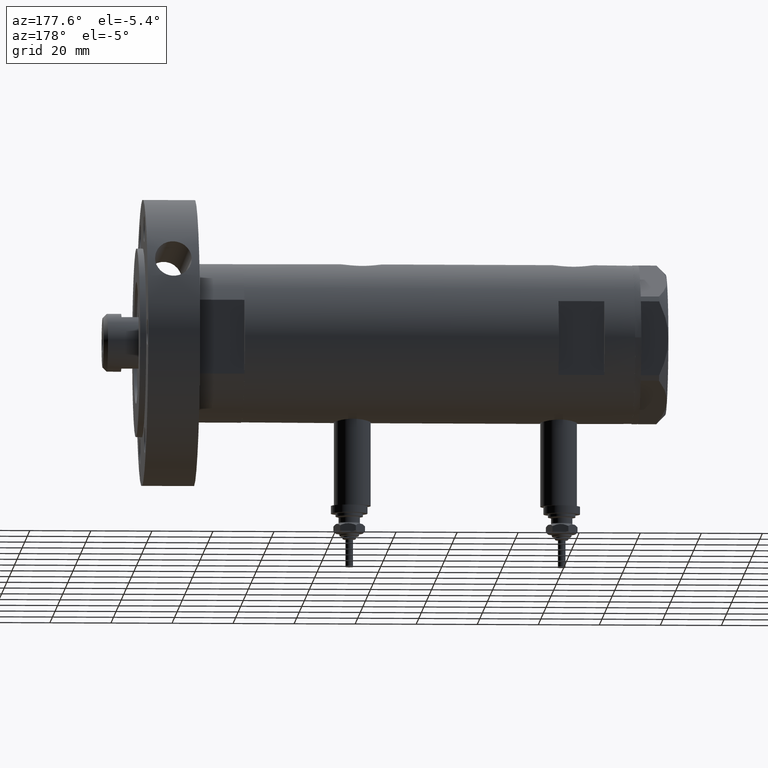
[diagram: clean part render]
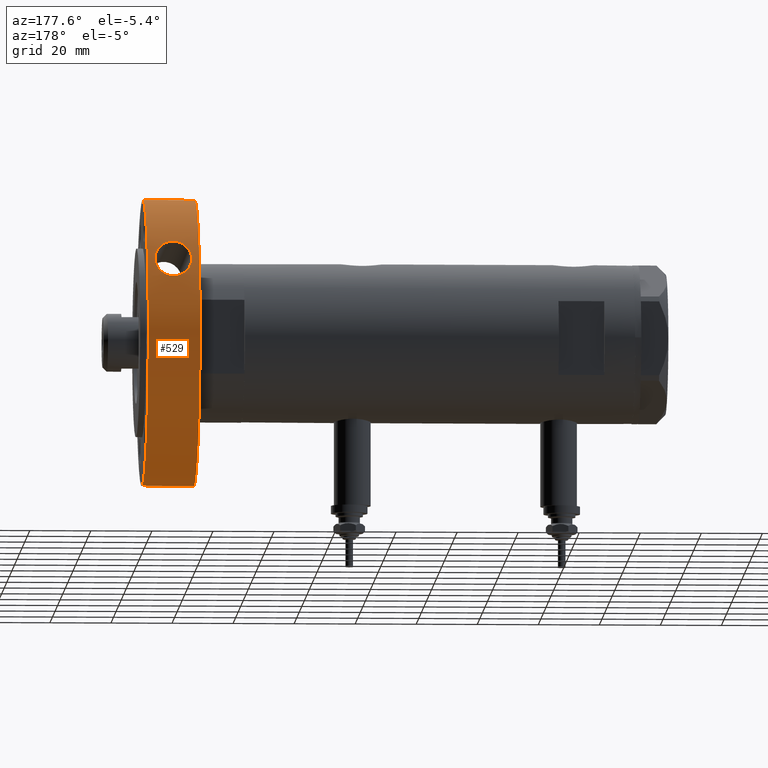
[diagram: same view with one face highlighted and labeled with its STEP entity id]
A machine part, auxiliary view. The second image highlights one B-rep face of the part: STEP entity #529.
In plain terms, the highlighted cylindrical surface (partial cylindrical patch) has radius 47 mm, axis along (-1, -0, 0).
Its self-contained STEP definition (entity closure, byte-faithful):
#51 = CARTESIAN_POINT ( 'NONE',  ( 30.01417878811716733, -36.16835727287583069, 8.950994580407639845 ) ) ;
#132 = CARTESIAN_POINT ( 'NONE',  ( 26.53532195692805828, -38.79495506457328702, 13.96309259924651336 ) ) ;
#176 = ORIENTED_EDGE ( 'NONE', *, *, #6110, .T. ) ;
#352 = CARTESIAN_POINT ( 'NONE',  ( 24.02717135699461792, -40.39424509235958993, 14.50000000000000355 ) ) ;
#353 = CIRCLE ( 'NONE', #1838, 46.99999999999999289 ) ;
#391 = CARTESIAN_POINT ( 'NONE',  ( 28.64079073445342516, -37.26652642190276055, 4.643314444515149297 ) ) ;
#392 = CARTESIAN_POINT ( 'NONE',  ( 18.36727706950141936, -43.26286534832171071, 10.53348308639339059 ) ) ;
#450 = AXIS2_PLACEMENT_3D ( 'NONE', #668, #1936, #2594 ) ;
#503 = CARTESIAN_POINT ( 'NONE',  ( 29.11125485298486382, -36.90018599321275161, 5.288831639457610478 ) ) ;
#504 = CARTESIAN_POINT ( 'NONE',  ( 21.20104478827418149, -41.94701542928802951, 3.203876467467758449 ) ) ;
#524 = CARTESIAN_POINT ( 'NONE',  ( -46.99999999999999289, 0.000000000000000000, 0.000000000000000000 ) ) ;
#529 = ADVANCED_FACE ( 'NONE', ( #4743, #4135 ), #2938, .T. ) ;
#631 = EDGE_CURVE ( 'NONE', #765, #6711, #2610, .T. ) ;
#645 = CARTESIAN_POINT ( 'NONE',  ( 27.50315184173289751, -38.11464883220152444, 13.40464259841227701 ) ) ;
#646 = CARTESIAN_POINT ( 'NONE',  ( 25.85661671239456183, -39.25057517580857080, 2.773760911892531489 ) ) ;
#668 = CARTESIAN_POINT ( 'NONE',  ( 0.000000000000000000, 0.000000000000000000, 0.000000000000000000 ) ) ;
#731 = CARTESIAN_POINT ( 'NONE',  ( 24.78256739165266254, -39.94492291971782549, 14.50000000000000178 ) ) ;
#765 = VERTEX_POINT ( 'NONE', #6500 ) ;
#795 = DIRECTION ( 'NONE',  ( -0.000000000000000000, -0.000000000000000000, -1.000000000000000000 ) ) ;
#807 = CARTESIAN_POINT ( 'NONE',  ( 29.92910341173029920, -36.23882543067242779, 9.601523201849401445 ) ) ;
#811 = CARTESIAN_POINT ( 'NONE',  ( 46.99999999999999289, 5.755839955992559063E-15, 0.000000000000000000 ) ) ;
#974 = ORIENTED_EDGE ( 'NONE', *, *, #3728, .F. ) ;
#1021 = CARTESIAN_POINT ( 'NONE',  ( 21.52213646932818492, -41.78462380048877378, 13.96499104840034278 ) ) ;
#1048 = CARTESIAN_POINT ( 'NONE',  ( 29.65294078200158623, -36.46519648906181743, 6.403450725137649790 ) ) ;
#1060 = CARTESIAN_POINT ( 'NONE',  ( 0.000000000000000000, 0.000000000000000000, 17.00000000000000000 ) ) ;
#1087 = EDGE_CURVE ( 'NONE', #4431, #2935, #353, .T. ) ;
#1101 = DIRECTION ( 'NONE',  ( -0.000000000000000000, -0.000000000000000000, -1.000000000000000000 ) ) ;
#1369 = CARTESIAN_POINT ( 'NONE',  ( 24.02717135699461792, -40.39424509235958993, 14.50000000000000355 ) ) ;
#1616 = CARTESIAN_POINT ( 'NONE',  ( 19.63685401476755743, -42.70240081328834236, 12.60862543726928031 ) ) ;
#1650 = LINE ( 'NONE', #6931, #5789 ) ;
#1684 = CARTESIAN_POINT ( 'NONE',  ( 18.24821789120786519, -43.31294824019133927, 6.833828576064998828 ) ) ;
#1714 = EDGE_LOOP ( 'NONE', ( #7332, #4101 ) ) ;
#1718 = CARTESIAN_POINT ( 'NONE',  ( 20.52777748613927855, -42.28171852828032229, 13.38905983612584727 ) ) ;
#1794 = CARTESIAN_POINT ( 'NONE',  ( 26.54578786497548748, -38.78779996430838395, 3.041680177170769994 ) ) ;
#1838 = AXIS2_PLACEMENT_3D ( 'NONE', #6687, #7884, #4712 ) ;
#1936 = DIRECTION ( 'NONE',  ( 0.000000000000000000, 0.000000000000000000, 1.000000000000000000 ) ) ;
#2007 = CARTESIAN_POINT ( 'NONE',  ( 29.30266612877326438, -36.74784259358991534, 11.38845270133253251 ) ) ;
#2147 = CARTESIAN_POINT ( 'NONE',  ( 29.97032196796284254, -36.20470555948930524, 7.647497300397265718 ) ) ;
#2178 = CARTESIAN_POINT ( 'NONE',  ( 19.39788269217121908, -42.81055108217567096, 4.677750665647628203 ) ) ;
#2216 = CARTESIAN_POINT ( 'NONE',  ( 19.66236114609360186, -42.68972582553552542, 4.378309165035071615 ) ) ;
#2299 = CARTESIAN_POINT ( 'NONE',  ( 23.84867510475768526, -40.50041764315914605, 2.499999999999998224 ) ) ;
#2324 = VERTEX_POINT ( 'NONE', #524 ) ;
#2325 = CARTESIAN_POINT ( 'NONE',  ( 18.23828482956311703, -43.31712604007590528, 10.13129599087749355 ) ) ;
#2565 = CARTESIAN_POINT ( 'NONE',  ( -46.99999999999999289, 0.000000000000000000, 17.00000000000000000 ) ) ;
#2577 = CARTESIAN_POINT ( 'NONE',  ( 28.36308941316638510, -37.47876335796586034, 12.66471750810946695 ) ) ;
#2588 = LINE ( 'NONE', #7467, #7058 ) ;
#2594 = DIRECTION ( 'NONE',  ( 1.000000000000000000, 0.000000000000000000, 0.000000000000000000 ) ) ;
#2610 = B_SPLINE_CURVE_WITH_KNOTS ( 'NONE', 3,
 ( #1369, #731, #5659, #132, #5696, #645, #2613, #2577, #7543, #4912, #2007, #4481, #3103, #807, #5572, #51, #7582, #6840, #2147, #7498, #2626, #4487, #1048, #4765, #4838, #503, #391, #2841, #7302, #4031, #5295, #1794, #646, #3661, #6820, #5573, #6857 ),
 .UNSPECIFIED., .F., .F.,
 ( 4, 2, 2, 2, 2, 2, 2, 2, 1, 2, 2, 2, 2, 2, 2, 2, 2, 2, 4 ),
 ( 0.000000000000000000, 0.002590858275774001861, 0.003886287413661007346, 0.005181716551548013264, 0.006477145689435019615, 0.007772574827322024232, 0.009068003965209030584, 0.009715718534152534627, 0.01036343310309603867, 0.01101114767203954098, 0.01165886224098304329, 0.01230657680992654733, 0.01295429137887004964, 0.01424972051675705773, 0.01554514965464406408, 0.01684057879253107390, 0.01813600793041808198, 0.01943143706830509007, 0.02072686620619209469 ),
 .UNSPECIFIED. ) ;
#2613 = CARTESIAN_POINT ( 'NONE',  ( 27.80167932005601727, -37.89708657517680024, 13.17954559214630983 ) ) ;
#2626 = CARTESIAN_POINT ( 'NONE',  ( 29.84331302489164273, -36.30950564947118409, 7.010445416079292613 ) ) ;
#2661 = CARTESIAN_POINT ( 'NONE',  ( 46.99999999999999289, 5.755839955992559063E-15, 17.00000000000000000 ) ) ;
#2804 = CARTESIAN_POINT ( 'NONE',  ( 23.30719735272933590, -40.81443579866633087, 2.540584903693111851 ) ) ;
#2841 = CARTESIAN_POINT ( 'NONE',  ( 28.37947888915565287, -37.46635966158473252, 4.352251824714793216 ) ) ;
#2842 = CARTESIAN_POINT ( 'NONE',  ( 23.66899589303408291, -40.60569235240382113, 2.507946829848313630 ) ) ;
#2923 = CARTESIAN_POINT ( 'NONE',  ( 21.03196075421767830, -42.03201448647705263, 3.297495144850682181 ) ) ;
#2935 = VERTEX_POINT ( 'NONE', #2661 ) ;
#2938 = CYLINDRICAL_SURFACE ( 'NONE', #7031, 46.99999999999999289 ) ;
#2960 = CARTESIAN_POINT ( 'NONE',  ( 18.07931100317254192, -43.38362639619419525, 9.316373881931792056 ) ) ;
#3103 = CARTESIAN_POINT ( 'NONE',  ( 29.78825902155540817, -36.35484043375675611, 10.23045956120386180 ) ) ;
#3480 = CARTESIAN_POINT ( 'NONE',  ( 22.22387659662646087, -41.41565468963003838, 14.23493286401424029 ) ) ;
#3512 = CARTESIAN_POINT ( 'NONE',  ( 19.80040130649696906, -42.62592172837626947, 4.237049931371764444 ) ) ;
#3520 = DIRECTION ( 'NONE',  ( -1.000000000000000000, 0.000000000000000000, 0.000000000000000000 ) ) ;
#3552 = CARTESIAN_POINT ( 'NONE',  ( 21.71267661231110324, -41.68450643737563155, 2.961265666633505322 ) ) ;
#3661 = CARTESIAN_POINT ( 'NONE',  ( 25.49612868421636591, -39.48585074230076941, 2.670857949173604418 ) ) ;
#3728 = EDGE_CURVE ( 'NONE', #2935, #3898, #2588, .T. ) ;
#3898 = VERTEX_POINT ( 'NONE', #811 ) ;
#4031 = CARTESIAN_POINT ( 'NONE',  ( 27.51268456965473774, -38.10779539452742881, 3.601911306876527608 ) ) ;
#4078 = EDGE_LOOP ( 'NONE', ( #974, #7462, #6351, #176 ) ) ;
#4087 = CARTESIAN_POINT ( 'NONE',  ( 18.37990569300471577, -43.25750819656069268, 6.432079339378294236 ) ) ;
#4101 = ORIENTED_EDGE ( 'NONE', *, *, #5656, .T. ) ;
#4135 = FACE_BOUND ( 'NONE', #1714, .T. ) ;
#4155 = CARTESIAN_POINT ( 'NONE',  ( 19.27067138371621979, -42.86791348098176258, 4.837093711336181379 ) ) ;
#4195 = CARTESIAN_POINT ( 'NONE',  ( 18.02860071031414435, -43.40471816190228793, 8.059134097202885982 ) ) ;
#4378 = EDGE_CURVE ( 'NONE', #4431, #2324, #1650, .T. ) ;
#4431 = VERTEX_POINT ( 'NONE', #2565 ) ;
#4481 = CARTESIAN_POINT ( 'NONE',  ( 29.65160965477712551, -36.46686471878745550, 10.63065668969366406 ) ) ;
#4487 = CARTESIAN_POINT ( 'NONE',  ( 29.78669168220882923, -36.35602358118680399, 6.805088170814357795 ) ) ;
#4675 = CARTESIAN_POINT ( 'NONE',  ( 18.69803258059236128, -43.12094575389036066, 11.28742474518901240 ) ) ;
#4712 = DIRECTION ( 'NONE',  ( 1.000000000000000000, 0.000000000000000000, 0.000000000000000000 ) ) ;
#4743 = FACE_OUTER_BOUND ( 'NONE', #4078, .T. ) ;
#4765 = CARTESIAN_POINT ( 'NONE',  ( 29.57525022966999728, -36.52830160800778714, 6.206060862846801918 ) ) ;
#4766 = CARTESIAN_POINT ( 'NONE',  ( 18.02650619172928614, -43.40558806295653937, 8.690579933985034700 ) ) ;
#4796 = CARTESIAN_POINT ( 'NONE',  ( 18.71348014342003907, -43.11425065545132895, 5.683514419513962856 ) ) ;
#4838 = CARTESIAN_POINT ( 'NONE',  ( 29.31675751850648481, -36.73658539730946160, 5.637549649425810827 ) ) ;
#4912 = CARTESIAN_POINT ( 'NONE',  ( 29.09619203813592492, -36.91205331125236455, 11.73441856266717842 ) ) ;
#5258 = CARTESIAN_POINT ( 'NONE',  ( 19.37139224572991836, -42.82307717453483065, 12.30655624157119554 ) ) ;
#5269 = B_SPLINE_CURVE_WITH_KNOTS ( 'NONE', 3,
 ( #5416, #2299, #2842, #2804, #5982, #7747, #5296, #3552, #6026, #504, #2923, #7253, #6664, #3512, #2216, #2178, #4155, #7191, #4796, #4087, #1684, #5914, #4195, #4766, #5385, #2960, #7859, #2325, #392, #4675, #7145, #5258, #1616, #5950, #1718, #6554, #1021, #3480, #5869, #5334, #7790, #352 ),
 .UNSPECIFIED., .F., .F.,
 ( 4, 2, 2, 2, 2, 2, 2, 2, 2, 2, 2, 2, 2, 2, 2, 2, 2, 2, 2, 2, 4 ),
 ( 0.02072686620619209469, 0.02134575438690576241, 0.02196464256761943359, 0.02320241892904676209, 0.02382130710976043675, 0.02444019529047410794, 0.02567797165190146419, 0.02629685983261513885, 0.02691574801332881350, 0.02815352437475614894, 0.02939130073618348438, 0.03062907709761082328, 0.03124796527832449794, 0.03186685345903816913, 0.03310462982046551844, 0.03434240618189286776, 0.03558018254332021013, 0.03681795890474755945, 0.03805573526617490876, 0.03929351162760225114, 0.04053128798902960045 ),
 .UNSPECIFIED. ) ;
#5295 = CARTESIAN_POINT ( 'NONE',  ( 26.87697096579903544, -38.55879035659806675, 3.206729046138816486 ) ) ;
#5296 = CARTESIAN_POINT ( 'NONE',  ( 22.23294397957124602, -41.41074513208972974, 2.762526350977645428 ) ) ;
#5334 = CARTESIAN_POINT ( 'NONE',  ( 23.30428300664192065, -40.81764507344394843, 14.46750209667907328 ) ) ;
#5385 = CARTESIAN_POINT ( 'NONE',  ( 18.03697714177743450, -43.40124400545440153, 8.901350679141497579 ) ) ;
#5416 = CARTESIAN_POINT ( 'NONE',  ( 24.02717135699463213, -40.39424509235963257, 2.499999999999736211 ) ) ;
#5572 = CARTESIAN_POINT ( 'NONE',  ( 29.96557572758542065, -36.20863526091250861, 9.384877179738449371 ) ) ;
#5573 = CARTESIAN_POINT ( 'NONE',  ( 24.40079175136807521, -40.17200944424799758, 2.499999999999996447 ) ) ;
#5656 = EDGE_CURVE ( 'NONE', #6711, #765, #5269, .T. ) ;
#5659 = CARTESIAN_POINT ( 'NONE',  ( 25.50267567034118343, -39.48798466538580243, 14.36239607505751081 ) ) ;
#5696 = CARTESIAN_POINT ( 'NONE',  ( 26.87168857717896842, -38.56244507085315831, 13.79591173760632294 ) ) ;
#5789 = VECTOR ( 'NONE', #795, 1000.000000000000000 ) ;
#5869 = CARTESIAN_POINT ( 'NONE',  ( 22.58512018499452267, -41.21992360527438137, 14.33559227998991403 ) ) ;
#5914 = CARTESIAN_POINT ( 'NONE',  ( 18.07378821552540771, -43.38602448949230705, 7.645798885193620720 ) ) ;
#5950 = CARTESIAN_POINT ( 'NONE',  ( 20.21272401400283769, -42.43285117394039219, 13.14819113384753280 ) ) ;
#5982 = CARTESIAN_POINT ( 'NONE',  ( 23.12522330022868289, -40.91780061144128666, 2.565369706125670390 ) ) ;
#6026 = CARTESIAN_POINT ( 'NONE',  ( 21.54090933315050194, -41.77350390666703817, 3.036080435890378570 ) ) ;
#6110 = EDGE_CURVE ( 'NONE', #2324, #3898, #7891, .T. ) ;
#6351 = ORIENTED_EDGE ( 'NONE', *, *, #4378, .T. ) ;
#6500 = CARTESIAN_POINT ( 'NONE',  ( 24.02717135699461792, -40.39424509235958993, 14.50000000000000355 ) ) ;
#6554 = CARTESIAN_POINT ( 'NONE',  ( 21.18233309422821620, -41.95762308461164736, 13.79674983393581122 ) ) ;
#6664 = CARTESIAN_POINT ( 'NONE',  ( 20.23073579459405380, -42.42425850356469397, 3.837340843451502614 ) ) ;
#6687 = CARTESIAN_POINT ( 'NONE',  ( 0.000000000000000000, 0.000000000000000000, 17.00000000000000000 ) ) ;
#6711 = VERTEX_POINT ( 'NONE', #7666 ) ;
#6820 = CARTESIAN_POINT ( 'NONE',  ( 24.76924286835162192, -39.94583325522181383, 2.534594519234811383 ) ) ;
#6840 = CARTESIAN_POINT ( 'NONE',  ( 30.01660631292541126, -36.16634138211271221, 8.082305199749599822 ) ) ;
#6857 = CARTESIAN_POINT ( 'NONE',  ( 24.02717135699463213, -40.39424509235963257, 2.499999999999736211 ) ) ;
#6931 = CARTESIAN_POINT ( 'NONE',  ( -46.99999999999999289, 0.000000000000000000, 17.00000000000000000 ) ) ;
#7031 = AXIS2_PLACEMENT_3D ( 'NONE', #1060, #1101, #3520 ) ;
#7058 = VECTOR ( 'NONE', #7505, 1000.000000000000000 ) ;
#7145 = CARTESIAN_POINT ( 'NONE',  ( 18.89934372347181579, -43.03349373518442889, 11.64189963461808119 ) ) ;
#7191 = CARTESIAN_POINT ( 'NONE',  ( 18.91576861517780372, -43.02628063016280890, 5.331678691756593480 ) ) ;
#7253 = CARTESIAN_POINT ( 'NONE',  ( 20.53911595780574473, -42.27622470733740556, 3.602771924492197630 ) ) ;
#7302 = CARTESIAN_POINT ( 'NONE',  ( 27.81736732094568865, -37.88557777892318512, 3.833008427805284057 ) ) ;
#7332 = ORIENTED_EDGE ( 'NONE', *, *, #631, .T. ) ;
#7462 = ORIENTED_EDGE ( 'NONE', *, *, #1087, .F. ) ;
#7467 = CARTESIAN_POINT ( 'NONE',  ( 46.99999999999999289, 5.755839955992559063E-15, 17.00000000000000000 ) ) ;
#7498 = CARTESIAN_POINT ( 'NONE',  ( 29.93505335796162115, -36.23390833551685830, 7.430791403804969164 ) ) ;
#7505 = DIRECTION ( 'NONE',  ( -0.000000000000000000, -0.000000000000000000, -1.000000000000000000 ) ) ;
#7543 = CARTESIAN_POINT ( 'NONE',  ( 28.62775077357292730, -37.27653358909616799, 12.37183459565619614 ) ) ;
#7582 = CARTESIAN_POINT ( 'NONE',  ( 30.03890347158557717, -36.14780491510246208, 8.516879439139374952 ) ) ;
#7666 = CARTESIAN_POINT ( 'NONE',  ( 24.02717135699463213, -40.39424509235963257, 2.499999999999736211 ) ) ;
#7747 = CARTESIAN_POINT ( 'NONE',  ( 22.58636251562916186, -41.21923903427862257, 2.664123204613364937 ) ) ;
#7790 = CARTESIAN_POINT ( 'NONE',  ( 23.66628270323901617, -40.60890768859712807, 14.50000000000000711 ) ) ;
#7859 = CARTESIAN_POINT ( 'NONE',  ( 18.11116049483393908, -43.37035826465339738, 9.521713726113931742 ) ) ;
#7884 = DIRECTION ( 'NONE',  ( 0.000000000000000000, 0.000000000000000000, 1.000000000000000000 ) ) ;
#7891 = CIRCLE ( 'NONE', #450, 46.99999999999999289 ) ;